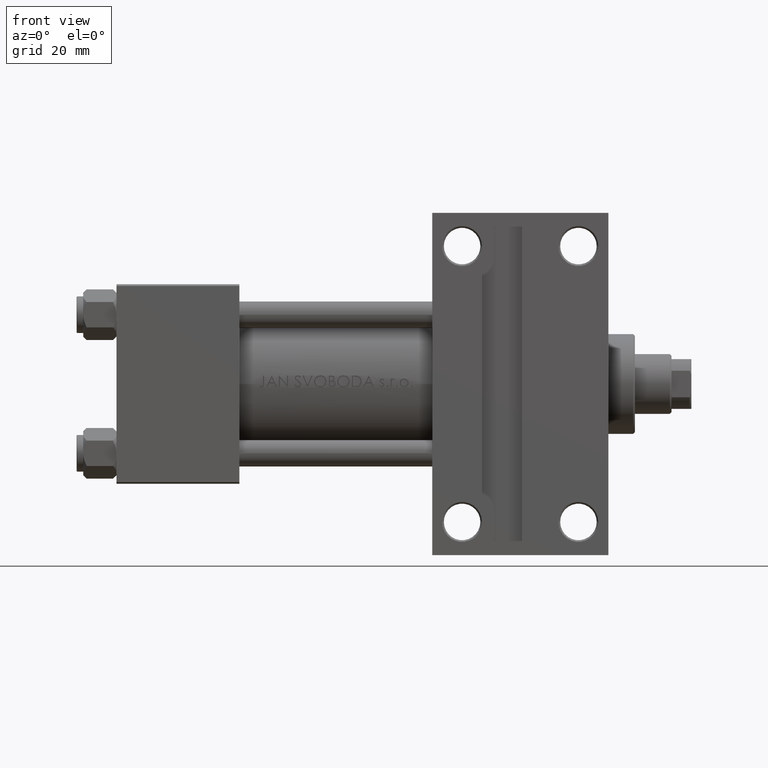
[diagram: clean part render]
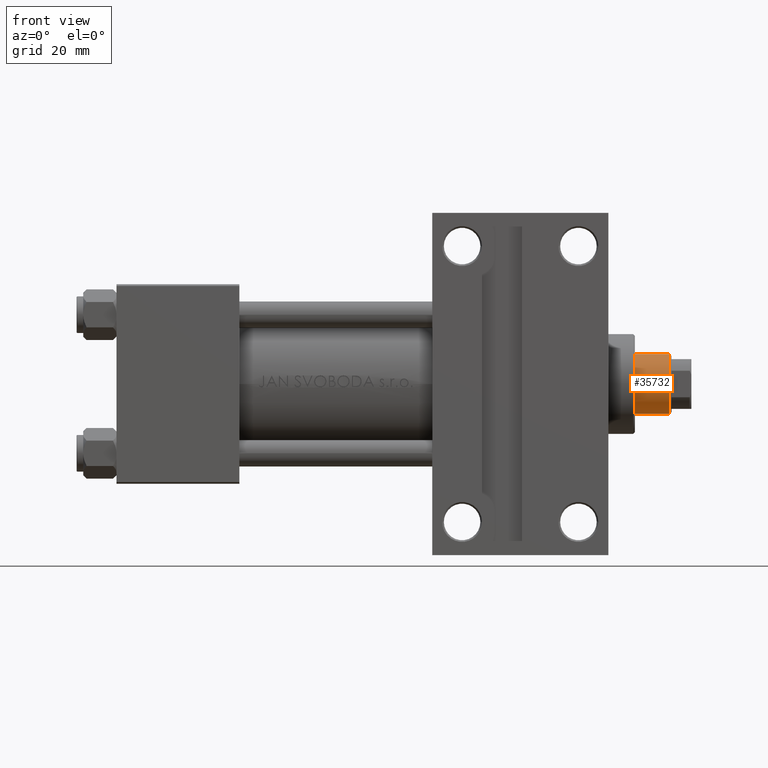
[diagram: same view with one face highlighted and labeled with its STEP entity id]
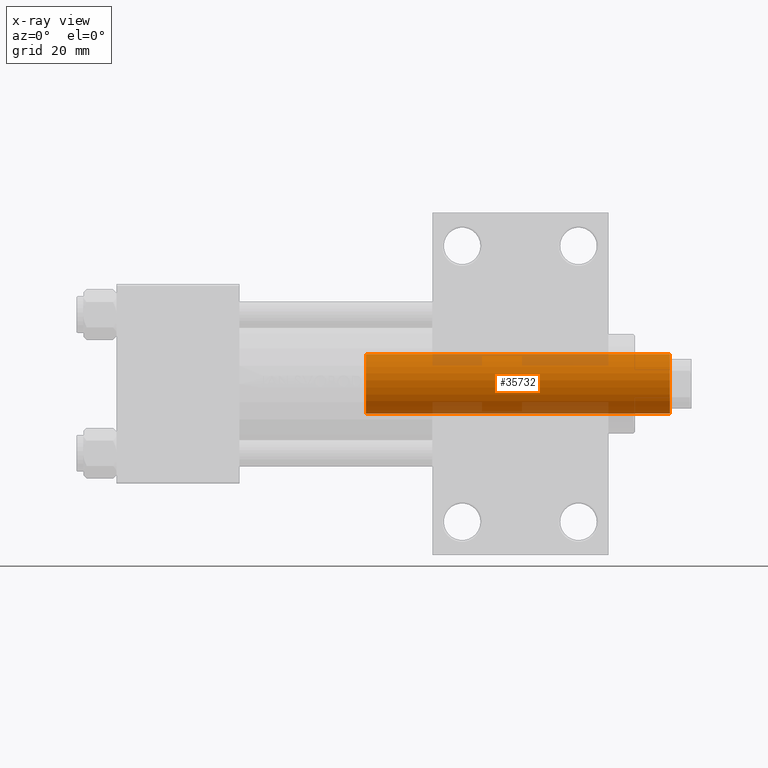
[diagram: x-ray of the same camera — body ghosted, the highlighted face saturated]
A machine part, front view. The second image highlights one B-rep face of the part: STEP entity #35732.
The next image is the same camera in x-ray: the body ghosted, the highlighted face saturated — about 18% of this face is hidden behind the body in this view.
In plain terms, the highlighted cylindrical surface (edge-blend (fillet) strip) has radius 9 mm, axis along (-1, 0, 0).
Its self-contained STEP definition (entity closure, byte-faithful):
#246 = VERTEX_POINT ( 'NONE', #37369 ) ;
#984 = CARTESIAN_POINT ( 'NONE',  ( 0.000000000000000000, 0.000000000000000000, 130.0000000000000000 ) ) ;
#3432 = AXIS2_PLACEMENT_3D ( 'NONE', #12877, #15849, #16809 ) ;
#3518 = CARTESIAN_POINT ( 'NONE',  ( -9.000000000000000000, 0.000000000000000000, 38.00000000000000000 ) ) ;
#3569 = EDGE_CURVE ( 'NONE', #33158, #11282, #11722, .T. ) ;
#3647 = EDGE_CURVE ( 'NONE', #11282, #246, #21446, .T. ) ;
#6397 = DIRECTION ( 'NONE',  ( -0.000000000000000000, -0.000000000000000000, -1.000000000000000000 ) ) ;
#7384 = FACE_OUTER_BOUND ( 'NONE', #11357, .T. ) ;
#8361 = CYLINDRICAL_SURFACE ( 'NONE', #22465, 9.000000000000000000 ) ;
#11282 = VERTEX_POINT ( 'NONE', #48303 ) ;
#11357 = EDGE_LOOP ( 'NONE', ( #18915, #23846, #42816, #39704 ) ) ;
#11722 = CIRCLE ( 'NONE', #48741, 9.000000000000000000 ) ;
#12137 = DIRECTION ( 'NONE',  ( 1.000000000000000000, 0.000000000000000000, 0.000000000000000000 ) ) ;
#12556 = CARTESIAN_POINT ( 'NONE',  ( -9.000000000000000000, 0.000000000000000000, 129.5000000000000000 ) ) ;
#12637 = CARTESIAN_POINT ( 'NONE',  ( 0.000000000000000000, 0.000000000000000000, 129.5000000000000000 ) ) ;
#12877 = CARTESIAN_POINT ( 'NONE',  ( 0.000000000000000000, 0.000000000000000000, 38.00000000000000000 ) ) ;
#15849 = DIRECTION ( 'NONE',  ( 0.000000000000000000, 0.000000000000000000, 1.000000000000000000 ) ) ;
#16809 = DIRECTION ( 'NONE',  ( 1.000000000000000000, 0.000000000000000000, 0.000000000000000000 ) ) ;
#18915 = ORIENTED_EDGE ( 'NONE', *, *, #3569, .T. ) ;
#21035 = EDGE_CURVE ( 'NONE', #33158, #36323, #23628, .T. ) ;
#21446 = LINE ( 'NONE', #40209, #21951 ) ;
#21951 = VECTOR ( 'NONE', #6397, 1000.000000000000000 ) ;
#22421 = DIRECTION ( 'NONE',  ( -0.000000000000000000, -0.000000000000000000, -1.000000000000000000 ) ) ;
#22465 = AXIS2_PLACEMENT_3D ( 'NONE', #984, #22421, #41169 ) ;
#23628 = LINE ( 'NONE', #42131, #45463 ) ;
#23846 = ORIENTED_EDGE ( 'NONE', *, *, #3647, .T. ) ;
#24667 = CIRCLE ( 'NONE', #3432, 9.000000000000000000 ) ;
#25897 = EDGE_CURVE ( 'NONE', #246, #36323, #24667, .T. ) ;
#27645 = DIRECTION ( 'NONE',  ( 0.000000000000000000, 0.000000000000000000, -1.000000000000000000 ) ) ;
#33158 = VERTEX_POINT ( 'NONE', #12556 ) ;
#35732 = ADVANCED_FACE ( 'NONE', ( #7384 ), #8361, .T. ) ;
#36323 = VERTEX_POINT ( 'NONE', #3518 ) ;
#37369 = CARTESIAN_POINT ( 'NONE',  ( 9.000000000000000000, 1.102182119232617714E-15, 38.00000000000000000 ) ) ;
#38188 = DIRECTION ( 'NONE',  ( -0.000000000000000000, -0.000000000000000000, -1.000000000000000000 ) ) ;
#39704 = ORIENTED_EDGE ( 'NONE', *, *, #21035, .F. ) ;
#40209 = CARTESIAN_POINT ( 'NONE',  ( 9.000000000000000000, 1.102182119232617714E-15, 130.0000000000000000 ) ) ;
#41169 = DIRECTION ( 'NONE',  ( -1.000000000000000000, 0.000000000000000000, 0.000000000000000000 ) ) ;
#42131 = CARTESIAN_POINT ( 'NONE',  ( -9.000000000000000000, 0.000000000000000000, 130.0000000000000000 ) ) ;
#42816 = ORIENTED_EDGE ( 'NONE', *, *, #25897, .T. ) ;
#45463 = VECTOR ( 'NONE', #38188, 1000.000000000000000 ) ;
#48303 = CARTESIAN_POINT ( 'NONE',  ( 9.000000000000000000, 1.102182119232617714E-15, 129.5000000000000000 ) ) ;
#48741 = AXIS2_PLACEMENT_3D ( 'NONE', #12637, #27645, #12137 ) ;